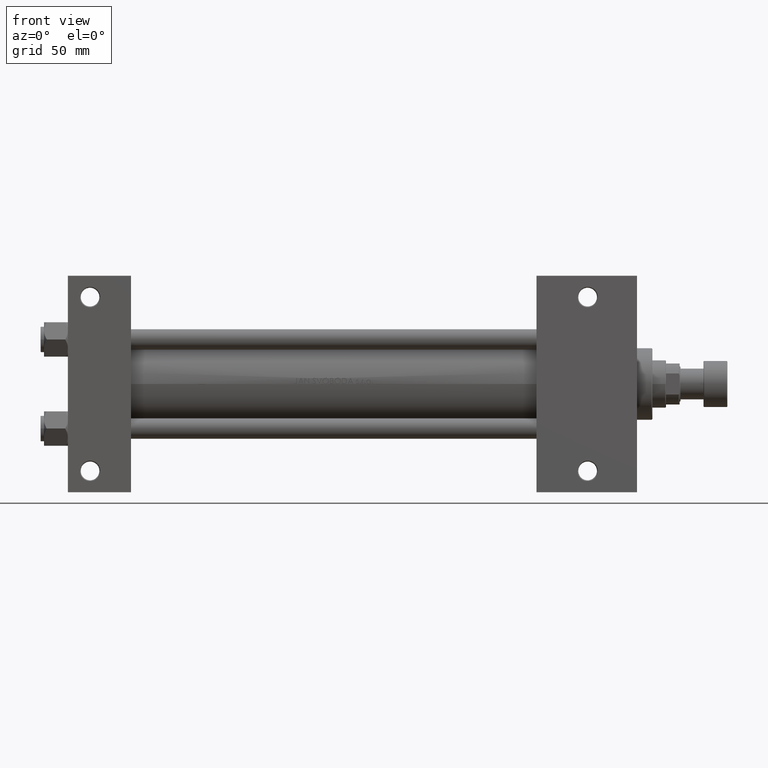
[diagram: clean part render]
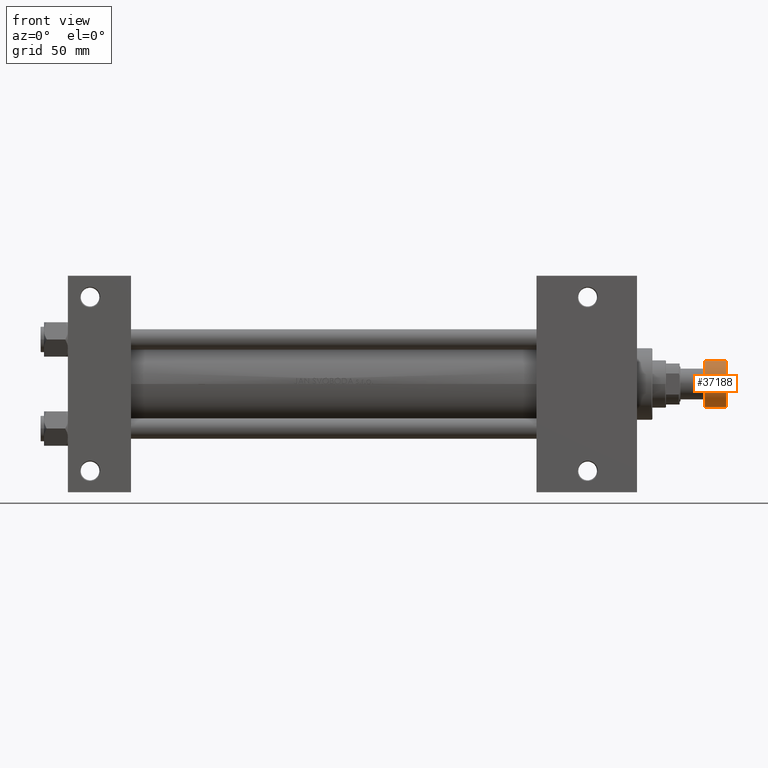
[diagram: same view with one face highlighted and labeled with its STEP entity id]
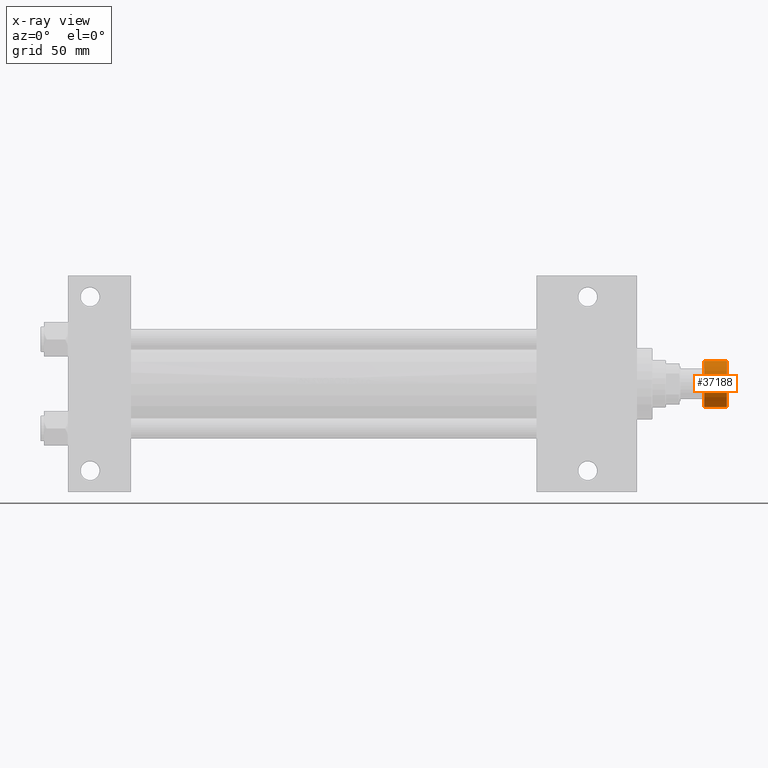
[diagram: x-ray of the same camera — body ghosted, the highlighted face saturated]
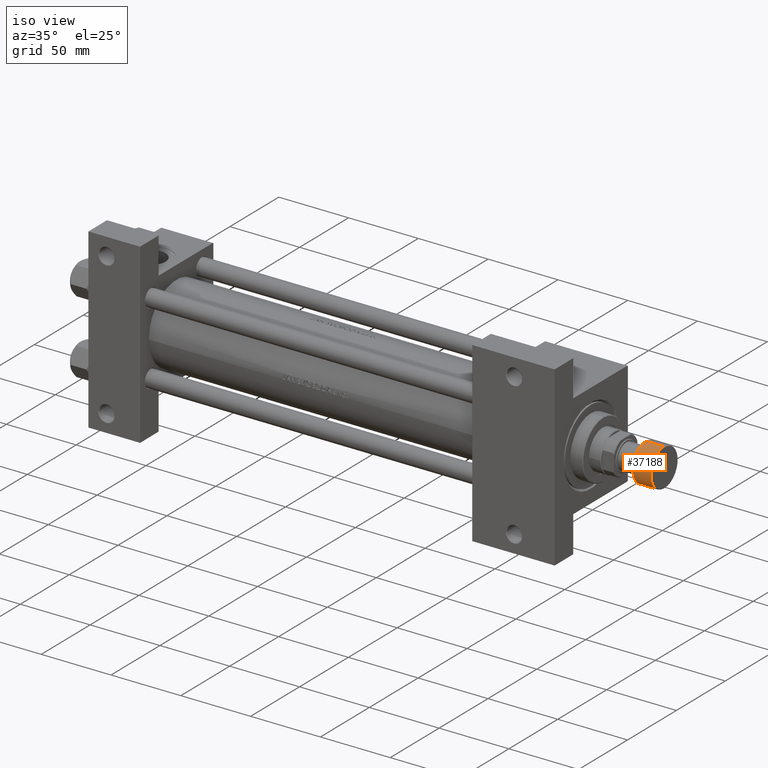
[diagram: same view with one face highlighted and labeled with its STEP entity id]
A machine part, front view. The second image highlights one B-rep face of the part: STEP entity #37188.
The next image is the same camera in x-ray: the body ghosted, the highlighted face saturated — about 0% of this face is hidden behind the body in this view.
A second angle (iso view) of the same face is appended — the face is thin or edge-on in the first view.
In plain terms, the highlighted cylindrical surface (edge-blend (fillet) strip) has radius 13.5 mm, axis along (1, 0, 0).
Its self-contained STEP definition (entity closure, byte-faithful):
#356 = EDGE_CURVE ( 'NONE', #16212, #20921, #46252, .T. ) ;
#892 = CARTESIAN_POINT ( 'NONE',  ( 0.000000000000000000, 0.000000000000000000, -14.00000000000000000 ) ) ;
#997 = AXIS2_PLACEMENT_3D ( 'NONE', #27337, #30876, #42992 ) ;
#1240 = VERTEX_POINT ( 'NONE', #37706 ) ;
#2640 = VERTEX_POINT ( 'NONE', #36906 ) ;
#2685 = DIRECTION ( 'NONE',  ( 0.000000000000000000, 0.000000000000000000, 1.000000000000000000 ) ) ;
#8721 = ORIENTED_EDGE ( 'NONE', *, *, #356, .T. ) ;
#9593 = VECTOR ( 'NONE', #11631, 1000.000000000000000 ) ;
#11054 = CARTESIAN_POINT ( 'NONE',  ( 13.50000000000000000, 0.000000000000000000, -0.5000000000000004441 ) ) ;
#11631 = DIRECTION ( 'NONE',  ( 0.000000000000000000, 0.000000000000000000, 1.000000000000000000 ) ) ;
#12388 = ORIENTED_EDGE ( 'NONE', *, *, #23838, .F. ) ;
#12794 = EDGE_CURVE ( 'NONE', #2640, #1240, #27154, .T. ) ;
#13266 = EDGE_LOOP ( 'NONE', ( #12388, #21150, #27450, #8721 ) ) ;
#14222 = AXIS2_PLACEMENT_3D ( 'NONE', #21930, #2685, #17389 ) ;
#16212 = VERTEX_POINT ( 'NONE', #11054 ) ;
#17389 = DIRECTION ( 'NONE',  ( 1.000000000000000000, 0.000000000000000000, 0.000000000000000000 ) ) ;
#19450 = EDGE_CURVE ( 'NONE', #1240, #16212, #42248, .T. ) ;
#19643 = FACE_OUTER_BOUND ( 'NONE', #13266, .T. ) ;
#20921 = VERTEX_POINT ( 'NONE', #28587 ) ;
#21150 = ORIENTED_EDGE ( 'NONE', *, *, #12794, .T. ) ;
#21930 = CARTESIAN_POINT ( 'NONE',  ( 0.000000000000000000, 0.000000000000000000, -13.50000000000000000 ) ) ;
#22541 = CARTESIAN_POINT ( 'NONE',  ( -13.50000000000000000, 1.653273178848926867E-15, -14.00000000000000000 ) ) ;
#23689 = CYLINDRICAL_SURFACE ( 'NONE', #46337, 13.50000000000000000 ) ;
#23838 = EDGE_CURVE ( 'NONE', #2640, #20921, #38723, .T. ) ;
#27154 = CIRCLE ( 'NONE', #14222, 13.50000000000000000 ) ;
#27337 = CARTESIAN_POINT ( 'NONE',  ( 0.000000000000000000, 0.000000000000000000, -0.5000000000000004441 ) ) ;
#27450 = ORIENTED_EDGE ( 'NONE', *, *, #19450, .T. ) ;
#27492 = DIRECTION ( 'NONE',  ( 1.000000000000000000, 0.000000000000000000, 0.000000000000000000 ) ) ;
#28587 = CARTESIAN_POINT ( 'NONE',  ( -13.50000000000000000, 1.653273178848926867E-15, -0.5000000000000004441 ) ) ;
#30876 = DIRECTION ( 'NONE',  ( -0.000000000000000000, -0.000000000000000000, -1.000000000000000000 ) ) ;
#32010 = DIRECTION ( 'NONE',  ( 0.000000000000000000, 0.000000000000000000, 1.000000000000000000 ) ) ;
#36906 = CARTESIAN_POINT ( 'NONE',  ( -13.50000000000000000, 1.653273178848926867E-15, -13.50000000000000000 ) ) ;
#37188 = ADVANCED_FACE ( 'NONE', ( #19643 ), #23689, .T. ) ;
#37706 = CARTESIAN_POINT ( 'NONE',  ( 13.50000000000000000, 0.000000000000000000, -13.50000000000000000 ) ) ;
#38723 = LINE ( 'NONE', #22541, #9593 ) ;
#41999 = DIRECTION ( 'NONE',  ( 0.000000000000000000, 0.000000000000000000, 1.000000000000000000 ) ) ;
#42248 = LINE ( 'NONE', #50083, #43542 ) ;
#42992 = DIRECTION ( 'NONE',  ( 1.000000000000000000, 0.000000000000000000, 0.000000000000000000 ) ) ;
#43542 = VECTOR ( 'NONE', #41999, 1000.000000000000000 ) ;
#46252 = CIRCLE ( 'NONE', #997, 13.50000000000000000 ) ;
#46337 = AXIS2_PLACEMENT_3D ( 'NONE', #892, #32010, #27492 ) ;
#50083 = CARTESIAN_POINT ( 'NONE',  ( 13.50000000000000000, 0.000000000000000000, -14.00000000000000000 ) ) ;